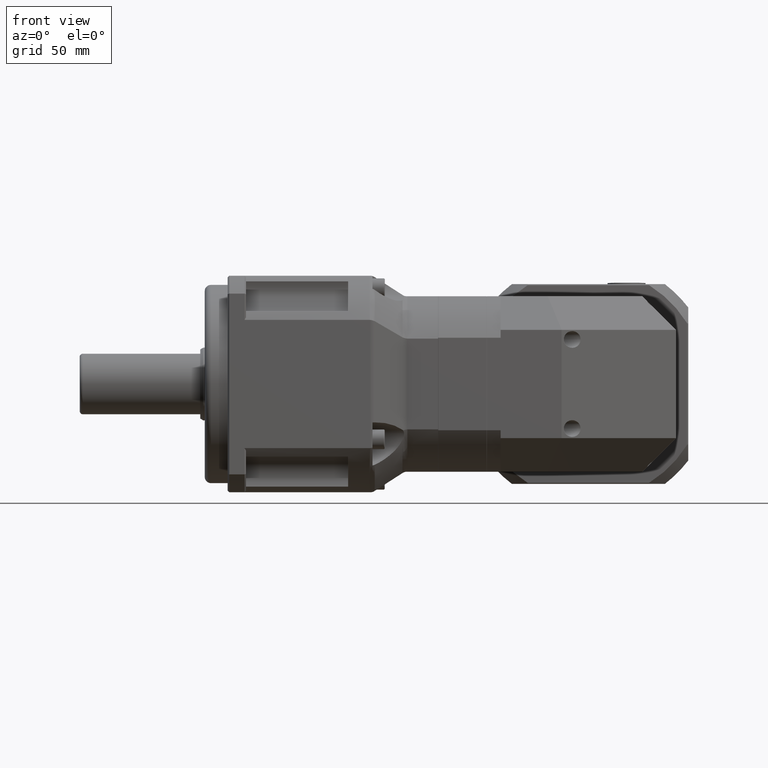
[diagram: clean part render]
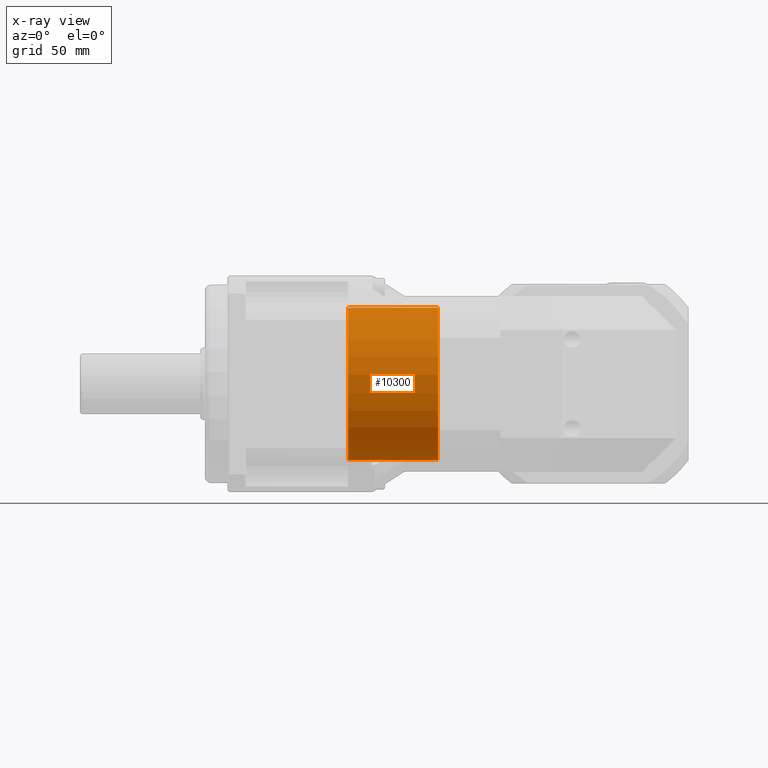
[diagram: x-ray — body ghosted, one internal face saturated and labeled with its STEP entity id]
A machine part, front view, then the same camera in x-ray: the body is ghosted and one INTERNAL B-rep face — a face not visible from any outside direction — is saturated and labeled: STEP entity #10300.
In plain terms, the highlighted cylindrical surface (bore or boss wall) has radius 50 mm, axis along (-1, -0, 0).
Its self-contained STEP definition (entity closure, byte-faithful):
#2056=FACE_BOUND('',#3326,.T.);
#2472=FACE_OUTER_BOUND('',#3325,.T.);
#3325=EDGE_LOOP('',(#7390));
#3326=EDGE_LOOP('',(#7391));
#4208=CIRCLE('',#11240,50.);
#4214=CIRCLE('',#11251,50.);
#4753=VERTEX_POINT('',#15842);
#4759=VERTEX_POINT('',#15859);
#5765=EDGE_CURVE('',#4753,#4753,#4208,.T.);
#5771=EDGE_CURVE('',#4759,#4759,#4214,.T.);
#7390=ORIENTED_EDGE('',*,*,#5771,.F.);
#7391=ORIENTED_EDGE('',*,*,#5765,.F.);
#9478=CYLINDRICAL_SURFACE('',#11252,50.);
#10300=ADVANCED_FACE('',(#2472,#2056),#9478,.F.);
#11240=AXIS2_PLACEMENT_3D('',#15843,#12948,#12949);
#11251=AXIS2_PLACEMENT_3D('',#15860,#12970,#12971);
#11252=AXIS2_PLACEMENT_3D('',#15861,#12972,#12973);
#12948=DIRECTION('center_axis',(-1.,-2.01613133174758E-19,2.48166054006035E-15));
#12949=DIRECTION('ref_axis',(2.48166054006035E-15,6.75848266240571E-15,
1.));
#12970=DIRECTION('center_axis',(1.,2.01613133174758E-19,-2.48166054006035E-15));
#12971=DIRECTION('ref_axis',(2.48166054006035E-15,6.75848266240571E-15,
1.));
#12972=DIRECTION('center_axis',(-1.,-2.01613133174758E-19,2.48166054006035E-15));
#12973=DIRECTION('ref_axis',(2.48166054006035E-15,6.75848266240571E-15,
1.));
#15842=CARTESIAN_POINT('',(-85.2324131843714,50.6418324565526,-164.027779989656));
#15843=CARTESIAN_POINT('Origin',(-85.2324131843713,50.6418324565529,-114.027779989656));
#15859=CARTESIAN_POINT('',(-144.232413184371,50.6418324565526,-164.027779989656));
#15860=CARTESIAN_POINT('Origin',(-144.232413184371,50.6418324565529,-114.027779989656));
#15861=CARTESIAN_POINT('Origin',(-85.2324131843713,50.6418324565529,-114.027779989656));